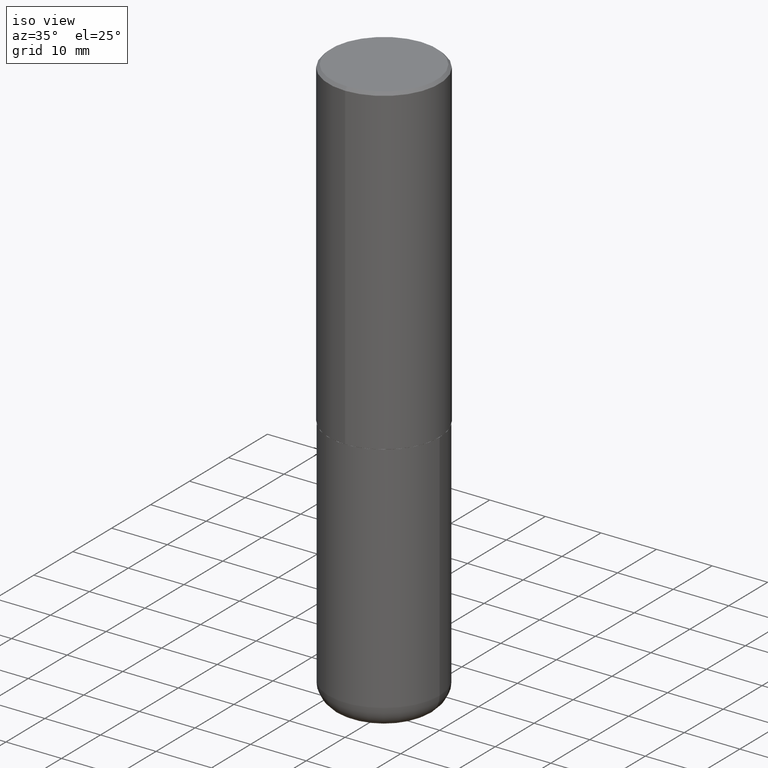
[diagram: clean part render]
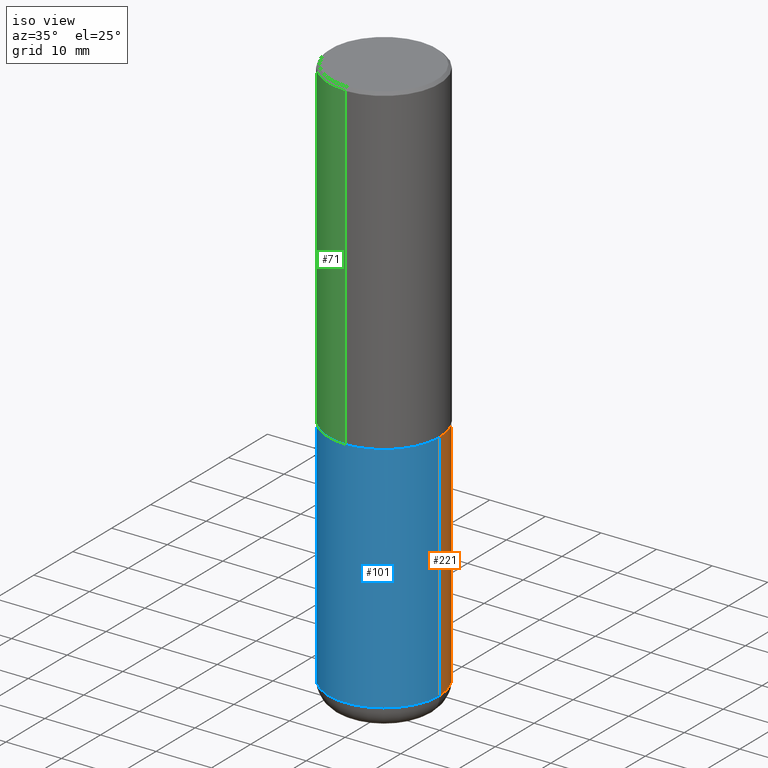
[diagram: same view with three faces highlighted in distinct colors, each labeled with its STEP entity id]
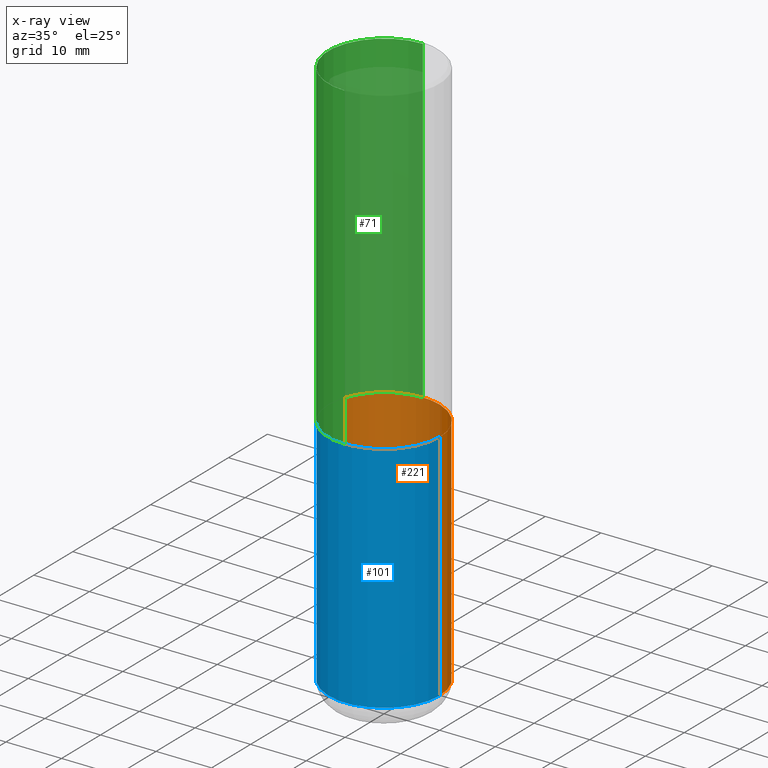
[diagram: x-ray of the same camera — body ghosted, the three highlighted faces saturated]
A machine part, iso view with three faces highlighted in distinct colors.
The next image is the same camera in x-ray (body ghosted, the three faces saturated) — at least one of them is partly hidden behind the body in this view.
Their STEP definitions:

[orange] entity #221 — the highlighted cylindrical surface (partial cylindrical patch) has radius 10 mm, axis along (-0, 0, 1).
#11 = CARTESIAN_POINT ( 'NONE',  ( -0.3936999999999999389, -1.094855528033794942E-14, -3.937000000000000277 ) ) ;
#27 = EDGE_CURVE ( 'NONE', #400, #52, #111, .T. ) ;
#45 = CARTESIAN_POINT ( 'NONE',  ( 9.627810689950883669E-29, -1.374596203102546341E-14, -3.937000000000000277 ) ) ;
#46 = ORIENTED_EDGE ( 'NONE', *, *, #27, .F. ) ;
#52 = VERTEX_POINT ( 'NONE', #234 ) ;
#61 = DIRECTION ( 'NONE',  ( 1.000000000000000000, -6.982962677686267499E-15, 0.000000000000000000 ) ) ;
#79 = DIRECTION ( 'NONE',  ( -2.445468806185136877E-29, 3.491481338843145188E-15, 1.000000000000000000 ) ) ;
#104 = CIRCLE ( 'NONE', #109, 0.3937000000000000499 ) ;
#109 = AXIS2_PLACEMENT_3D ( 'NONE', #45, #382, #61 ) ;
#111 = LINE ( 'NONE', #373, #259 ) ;
#119 = DIRECTION ( 'NONE',  ( 1.000000000000000000, -6.982962677686265922E-15, 4.876176775795935793E-29 ) ) ;
#147 = ORIENTED_EDGE ( 'NONE', *, *, #318, .T. ) ;
#164 = EDGE_CURVE ( 'NONE', #197, #258, #303, .T. ) ;
#184 = CARTESIAN_POINT ( 'NONE',  ( -0.3937000000000000499, 2.797406750687514786E-15, -1.936584745033356735E-29 ) ) ;
#195 = CARTESIAN_POINT ( 'NONE',  ( 5.584228018923760468E-29, -7.972797637248324710E-15, -2.283500000000000529 ) ) ;
#197 = VERTEX_POINT ( 'NONE', #11 ) ;
#198 = AXIS2_PLACEMENT_3D ( 'NONE', #195, #415, #199 ) ;
#199 = DIRECTION ( 'NONE',  ( 1.000000000000000000, -6.982962677686265133E-15, 0.000000000000000000 ) ) ;
#203 = AXIS2_PLACEMENT_3D ( 'NONE', #280, #410, #119 ) ;
#221 = ADVANCED_FACE ( 'NONE', ( #398 ), #244, .T. ) ;
#234 = CARTESIAN_POINT ( 'NONE',  ( 0.3937000000000000499, -1.072199004345340635E-14, -2.283500000000000529 ) ) ;
#244 = CYLINDRICAL_SURFACE ( 'NONE', #203, 0.3937000000000000499 ) ;
#258 = VERTEX_POINT ( 'NONE', #291 ) ;
#259 = VECTOR ( 'NONE', #79, 39.37007874015748143 ) ;
#274 = DIRECTION ( 'NONE',  ( -2.445468806185136877E-29, 3.491481338843145188E-15, 1.000000000000000000 ) ) ;
#280 = CARTESIAN_POINT ( 'NONE',  ( 0.000000000000000000, 0.000000000000000000, 0.000000000000000000 ) ) ;
#284 = EDGE_LOOP ( 'NONE', ( #147, #336, #362, #46 ) ) ;
#291 = CARTESIAN_POINT ( 'NONE',  ( -0.3937000000000000499, -8.061973083449380064E-15, -2.283500000000000529 ) ) ;
#303 = LINE ( 'NONE', #184, #387 ) ;
#314 = CARTESIAN_POINT ( 'NONE',  ( 0.3936999999999999389, -1.649515443723054663E-14, -3.937000000000000277 ) ) ;
#318 = EDGE_CURVE ( 'NONE', #400, #197, #104, .T. ) ;
#336 = ORIENTED_EDGE ( 'NONE', *, *, #164, .T. ) ;
#350 = CIRCLE ( 'NONE', #198, 0.3937000000000000499 ) ;
#362 = ORIENTED_EDGE ( 'NONE', *, *, #392, .F. ) ;
#373 = CARTESIAN_POINT ( 'NONE',  ( 0.3937000000000000499, -2.749192406205083217E-15, 1.919750796630860172E-29 ) ) ;
#382 = DIRECTION ( 'NONE',  ( -2.445468806185136597E-29, 3.491481338843145583E-15, 1.000000000000000000 ) ) ;
#387 = VECTOR ( 'NONE', #274, 39.37007874015748143 ) ;
#392 = EDGE_CURVE ( 'NONE', #52, #258, #350, .T. ) ;
#398 = FACE_OUTER_BOUND ( 'NONE', #284, .T. ) ;
#400 = VERTEX_POINT ( 'NONE', #314 ) ;
#410 = DIRECTION ( 'NONE',  ( -2.445468806185136597E-29, 3.491481338843145583E-15, 1.000000000000000000 ) ) ;
#415 = DIRECTION ( 'NONE',  ( -2.445468806185136597E-29, 3.491481338843145583E-15, 1.000000000000000000 ) ) ;

[blue] entity #101 — the highlighted cylindrical surface (partial cylindrical patch) has radius 10 mm, axis along (-0, 0, 1).
#11 = CARTESIAN_POINT ( 'NONE',  ( -0.3936999999999999389, -1.094855528033794942E-14, -3.937000000000000277 ) ) ;
#13 = DIRECTION ( 'NONE',  ( -2.445468806185136597E-29, 3.491481338843145583E-15, 1.000000000000000000 ) ) ;
#27 = EDGE_CURVE ( 'NONE', #400, #52, #111, .T. ) ;
#52 = VERTEX_POINT ( 'NONE', #234 ) ;
#53 = ORIENTED_EDGE ( 'NONE', *, *, #27, .T. ) ;
#64 = CARTESIAN_POINT ( 'NONE',  ( 5.584228018923760468E-29, -7.972797637248324710E-15, -2.283500000000000529 ) ) ;
#73 = AXIS2_PLACEMENT_3D ( 'NONE', #129, #156, #417 ) ;
#79 = DIRECTION ( 'NONE',  ( -2.445468806185136877E-29, 3.491481338843145188E-15, 1.000000000000000000 ) ) ;
#97 = EDGE_LOOP ( 'NONE', ( #106, #253, #53, #215 ) ) ;
#99 = CIRCLE ( 'NONE', #330, 0.3937000000000000499 ) ;
#101 = ADVANCED_FACE ( 'NONE', ( #121 ), #316, .T. ) ;
#106 = ORIENTED_EDGE ( 'NONE', *, *, #164, .F. ) ;
#111 = LINE ( 'NONE', #373, #259 ) ;
#121 = FACE_OUTER_BOUND ( 'NONE', #97, .T. ) ;
#129 = CARTESIAN_POINT ( 'NONE',  ( 0.000000000000000000, 0.000000000000000000, 0.000000000000000000 ) ) ;
#154 = EDGE_CURVE ( 'NONE', #197, #400, #99, .T. ) ;
#156 = DIRECTION ( 'NONE',  ( -2.445468806185136597E-29, 3.491481338843145583E-15, 1.000000000000000000 ) ) ;
#158 = DIRECTION ( 'NONE',  ( 1.000000000000000000, -6.982962677686265133E-15, 0.000000000000000000 ) ) ;
#159 = DIRECTION ( 'NONE',  ( -2.445468806185136597E-29, 3.491481338843145583E-15, 1.000000000000000000 ) ) ;
#164 = EDGE_CURVE ( 'NONE', #197, #258, #303, .T. ) ;
#181 = CIRCLE ( 'NONE', #239, 0.3937000000000000499 ) ;
#184 = CARTESIAN_POINT ( 'NONE',  ( -0.3937000000000000499, 2.797406750687514786E-15, -1.936584745033356735E-29 ) ) ;
#197 = VERTEX_POINT ( 'NONE', #11 ) ;
#215 = ORIENTED_EDGE ( 'NONE', *, *, #236, .F. ) ;
#234 = CARTESIAN_POINT ( 'NONE',  ( 0.3937000000000000499, -1.072199004345340635E-14, -2.283500000000000529 ) ) ;
#236 = EDGE_CURVE ( 'NONE', #258, #52, #181, .T. ) ;
#239 = AXIS2_PLACEMENT_3D ( 'NONE', #64, #159, #158 ) ;
#253 = ORIENTED_EDGE ( 'NONE', *, *, #154, .T. ) ;
#258 = VERTEX_POINT ( 'NONE', #291 ) ;
#259 = VECTOR ( 'NONE', #79, 39.37007874015748143 ) ;
#274 = DIRECTION ( 'NONE',  ( -2.445468806185136877E-29, 3.491481338843145188E-15, 1.000000000000000000 ) ) ;
#277 = DIRECTION ( 'NONE',  ( 1.000000000000000000, -6.982962677686267499E-15, 0.000000000000000000 ) ) ;
#291 = CARTESIAN_POINT ( 'NONE',  ( -0.3937000000000000499, -8.061973083449380064E-15, -2.283500000000000529 ) ) ;
#303 = LINE ( 'NONE', #184, #387 ) ;
#314 = CARTESIAN_POINT ( 'NONE',  ( 0.3936999999999999389, -1.649515443723054663E-14, -3.937000000000000277 ) ) ;
#316 = CYLINDRICAL_SURFACE ( 'NONE', #73, 0.3937000000000000499 ) ;
#330 = AXIS2_PLACEMENT_3D ( 'NONE', #363, #13, #277 ) ;
#363 = CARTESIAN_POINT ( 'NONE',  ( 9.627810689950883669E-29, -1.374596203102546341E-14, -3.937000000000000277 ) ) ;
#373 = CARTESIAN_POINT ( 'NONE',  ( 0.3937000000000000499, -2.749192406205083217E-15, 1.919750796630860172E-29 ) ) ;
#387 = VECTOR ( 'NONE', #274, 39.37007874015748143 ) ;
#400 = VERTEX_POINT ( 'NONE', #314 ) ;
#417 = DIRECTION ( 'NONE',  ( 1.000000000000000000, -6.982962677686265922E-15, 4.876176775795935793E-29 ) ) ;

[green] entity #71 — the highlighted cylindrical surface (partial cylindrical patch) has radius 10 mm, axis along (-0, 0, 1).
#2 = AXIS2_PLACEMENT_3D ( 'NONE', #84, #58, #211 ) ;
#12 = ORIENTED_EDGE ( 'NONE', *, *, #351, .F. ) ;
#32 = DIRECTION ( 'NONE',  ( -2.446310600165217615E-29, 3.490275841951731758E-15, 1.000000000000000000 ) ) ;
#37 = AXIS2_PLACEMENT_3D ( 'NONE', #160, #293, #201 ) ;
#39 = CARTESIAN_POINT ( 'NONE',  ( -2.749192406205084005E-15, -0.3937000000000001609, 1.374121598976397400E-15 ) ) ;
#58 = DIRECTION ( 'NONE',  ( -2.446310600165217615E-29, 3.490275841951731758E-15, 1.000000000000000000 ) ) ;
#59 = VECTOR ( 'NONE', #319, 39.37007874015748143 ) ;
#71 = ADVANCED_FACE ( 'NONE', ( #269 ), #394, .T. ) ;
#77 = ORIENTED_EDGE ( 'NONE', *, *, #204, .F. ) ;
#80 = LINE ( 'NONE', #209, #161 ) ;
#84 = CARTESIAN_POINT ( 'NONE',  ( 4.892621200330456179E-31, -6.980551683903491963E-17, -0.02000000000000008715 ) ) ;
#94 = EDGE_CURVE ( 'NONE', #329, #150, #128, .T. ) ;
#98 = CARTESIAN_POINT ( 'NONE',  ( 2.797406750687543580E-15, 0.3936999999999923339, -2.282500000000001528 ) ) ;
#100 = CIRCLE ( 'NONE', #131, 0.3937000000000002720 ) ;
#128 = LINE ( 'NONE', #39, #59 ) ;
#131 = AXIS2_PLACEMENT_3D ( 'NONE', #354, #32, #389 ) ;
#141 = DIRECTION ( 'NONE',  ( -2.446310600165217895E-29, 3.490275841951731363E-15, 1.000000000000000000 ) ) ;
#150 = VERTEX_POINT ( 'NONE', #355 ) ;
#160 = CARTESIAN_POINT ( 'NONE',  ( 0.000000000000000000, 0.000000000000000000, 0.000000000000000000 ) ) ;
#161 = VECTOR ( 'NONE', #141, 39.37007874015748143 ) ;
#190 = CIRCLE ( 'NONE', #2, 0.3937000000000000499 ) ;
#201 = DIRECTION ( 'NONE',  ( -6.982962677686265922E-15, -1.000000000000000000, 3.490275841951731758E-15 ) ) ;
#204 = EDGE_CURVE ( 'NONE', #320, #295, #80, .T. ) ;
#209 = CARTESIAN_POINT ( 'NONE',  ( 2.797406750687515181E-15, 0.3937000000000001609, -1.374121598976397400E-15 ) ) ;
#211 = DIRECTION ( 'NONE',  ( -6.982962677686265133E-15, -1.000000000000000000, 3.491137977679279424E-15 ) ) ;
#219 = CARTESIAN_POINT ( 'NONE',  ( -2.749192406205029180E-15, -0.3937000000000082656, -2.282499999999998863 ) ) ;
#243 = ORIENTED_EDGE ( 'NONE', *, *, #324, .T. ) ;
#269 = FACE_OUTER_BOUND ( 'NONE', #326, .T. ) ;
#293 = DIRECTION ( 'NONE',  ( -2.446310600165217615E-29, 3.490275841951731758E-15, 1.000000000000000000 ) ) ;
#295 = VERTEX_POINT ( 'NONE', #346 ) ;
#315 = ORIENTED_EDGE ( 'NONE', *, *, #94, .T. ) ;
#319 = DIRECTION ( 'NONE',  ( -2.446310600165217895E-29, 3.490275841951731363E-15, 1.000000000000000000 ) ) ;
#320 = VERTEX_POINT ( 'NONE', #98 ) ;
#324 = EDGE_CURVE ( 'NONE', #320, #329, #100, .T. ) ;
#326 = EDGE_LOOP ( 'NONE', ( #77, #243, #315, #12 ) ) ;
#329 = VERTEX_POINT ( 'NONE', #219 ) ;
#346 = CARTESIAN_POINT ( 'NONE',  ( 2.749192406205083217E-15, 0.3936999999999999389, -0.02000000000000146105 ) ) ;
#351 = EDGE_CURVE ( 'NONE', #295, #150, #190, .T. ) ;
#354 = CARTESIAN_POINT ( 'NONE',  ( 5.583703944877110670E-29, -7.966554609254827797E-15, -2.282500000000000195 ) ) ;
#355 = CARTESIAN_POINT ( 'NONE',  ( -2.700978061722651252E-15, -0.3937000000000001054, -0.01999999999999870978 ) ) ;
#389 = DIRECTION ( 'NONE',  ( -6.982962677686265922E-15, -1.000000000000000000, 3.469453890861393601E-15 ) ) ;
#394 = CYLINDRICAL_SURFACE ( 'NONE', #37, 0.3937000000000001609 ) ;